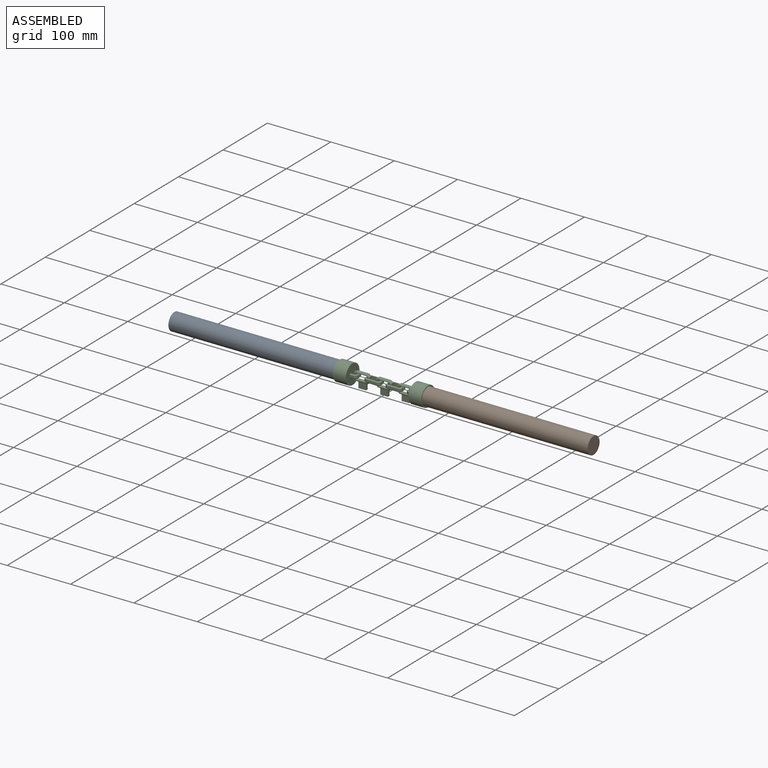
[diagram: assembled view]
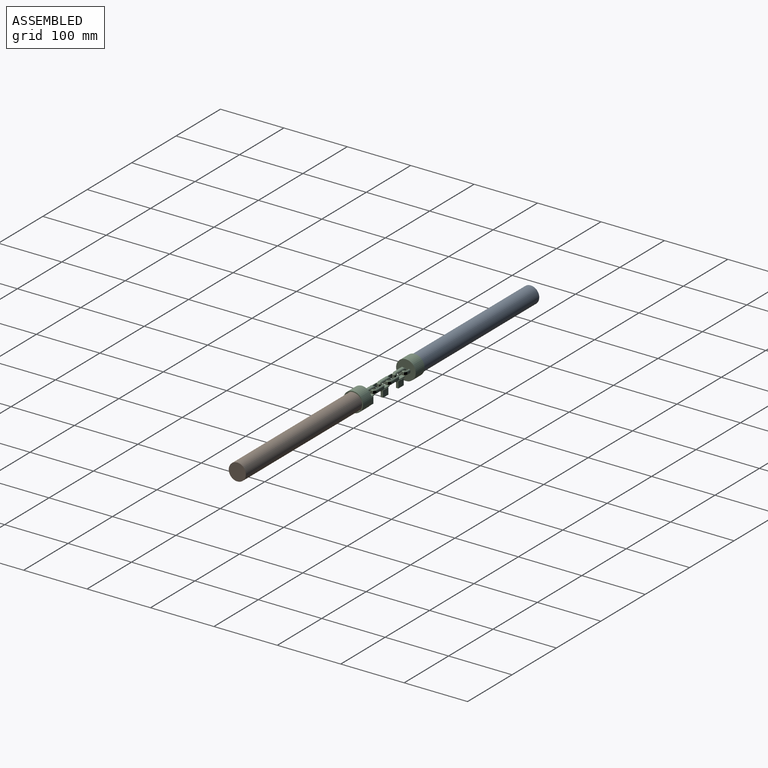
[diagram: assembled view, second angle]
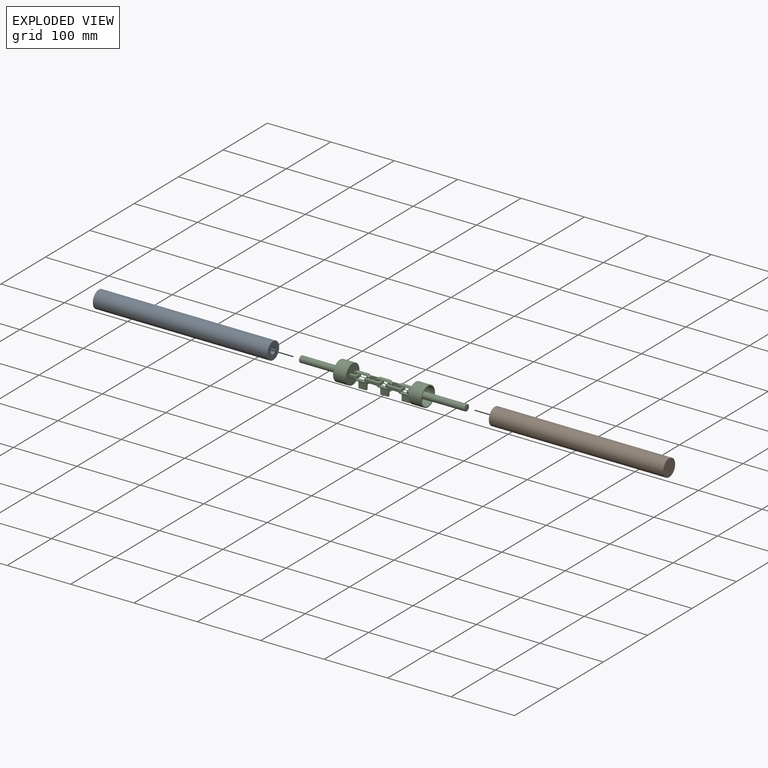
[diagram: exploded view]
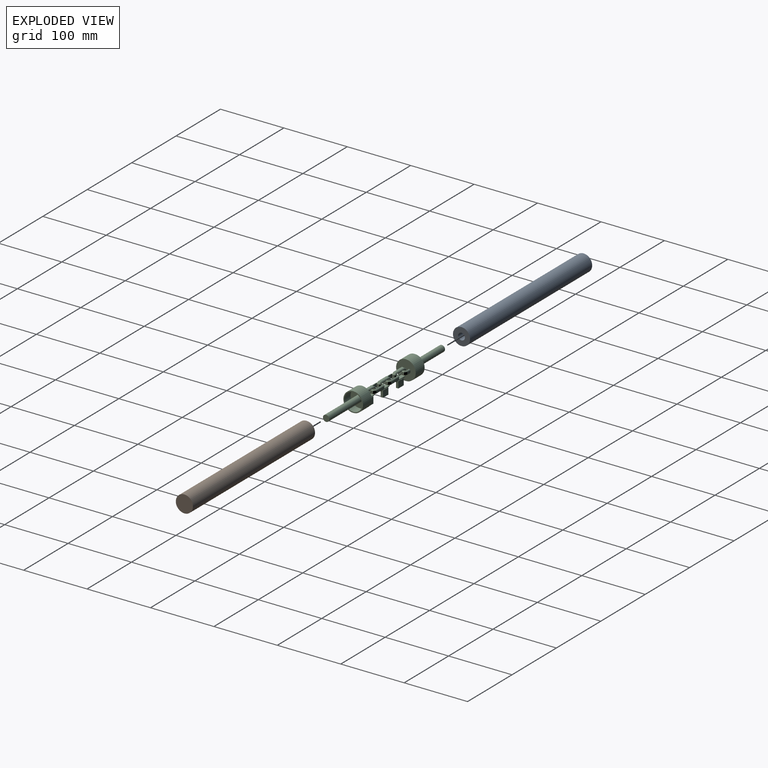
[diagram: exploded view, second angle]
ASSEMBLY  parts=3 mates=2
PART A: 5 faces, bbox 275x27x27 mm
  f0: cylinder r=13.5mm len=275mm, axis (-1,0,0), area 23326.3mm2, adj f1,f4
  f1: plane 27x27mm, normal (-1,0,0), area 480.9mm2, adj f0,f2
  f2: cylinder r=5.4mm len=76mm, axis (-1,0,0), area 2578.6mm2, adj f1,f3
  f3: plane 10.8x10.8mm, normal (-1,0,0), area 91.6mm2, adj f2
  f4: plane 27x27mm, normal (1,0,0), area 572.6mm2, adj f0
PART B: same geometry as A
PART C: 259 faces, bbox 260.9x31.2x32.7 mm
  f0: plane 6.84x3.9mm, normal (0,-1,0), area 26.7mm2, adj f3,f7,f15,f23
  f1: plane 6.84x3.9mm, normal (0,1,0), area 26.7mm2, adj f2,f6,f20,f23
  f2: plane 6.84x1.05mm, normal (0,0.71,-0.71), area 9.9mm2, adj f1,f8,f11,f23
  f3: plane 6.84x1.05mm, normal (0,-0.71,-0.71), area 9.9mm2, adj f0,f8,f10,f23
  f4: plane 6.13x6mm, normal (0,1,0), area 36.8mm2, adj f8,f9,f16,f23
  f5: plane 6.13x6mm, normal (0,-1,0), area 36.8mm2, adj f8,f9,f17,f23
  f6: plane 6.84x1.05mm, normal (0,0.71,0.71), area 9.9mm2, adj f1,f9,f12,f23
  f7: plane 6.84x1.05mm, normal (0,-0.71,0.71), area 9.9mm2, adj f0,f9,f13,f23
  f8: plane 11.79x9.36mm, normal (0,0,-1), area 28.1mm2, adj f2,f3,f4,f5,f10,f11,f14,f16
  f9: plane 11.79x9.36mm, normal (0,0,1), area 28.1mm2, adj f4,f5,f6,f7,f12,f13,f16,f17
  f10: plane 3.92x3.2mm, normal (0.42,-0.57,-0.71), area 6mm2, adj f3,f8,f14,f15
  f11: plane 3.92x3.2mm, normal (0.42,0.57,-0.71), area 6mm2, adj f2,f8,f14,f20
  f12: plane 3.92x3.2mm, normal (0.42,0.57,0.71), area 6mm2, adj f6,f9,f19,f20
  f13: plane 3.92x3.2mm, normal (0.42,-0.57,0.71), area 6mm2, adj f7,f9,f15,f19
  f14: plane 8.55x1.05mm, normal (0.71,0,-0.71), area 11.9mm2, adj f8,f10,f11,f21
  f15: plane 3.9x3.57mm, normal (0.6,-0.8,0), area 17.4mm2, adj f0,f10,f13,f21
  f16: plane 6x2.14mm, normal (-0.6,0.8,0), area 16.1mm2, adj f4,f8,f9,f18
  f17: plane 6x2.14mm, normal (-0.6,-0.8,0), area 16mm2, adj f5,f8,f9,f18
  f18: plane 6.42x6mm, normal (-1,0,0), area 37.7mm2, adj f8,f9,f16,f17,f216
  f19: plane 8.55x1.05mm, normal (0.71,0,0.71), area 11.9mm2, adj f9,f12,f13,f21
  f20: plane 3.9x3.57mm, normal (0.6,0.8,0), area 17.4mm2, adj f1,f11,f12,f21
  f21: plane 8.55x3.9mm, normal (1,0,0), area 32.6mm2, adj f14,f15,f19,f20,f28
  f22: cylinder r=15.5mm len=31mm, axis (-1,0,0), area 1947.8mm2, adj f23,f24
  f23: plane 31x31mm, normal (1,0,0), area 730.6mm2, adj f0,f1,f2,f3,f4,f5,f6,f7
  f24: plane 31x31mm, normal (-1,0,0), area 139mm2, adj f22,f26
  f25: plane 28x28mm, normal (-1,0,0), area 537.2mm2, adj f26,f27
  f26: cylinder r=14mm len=28mm, axis (-1,0,0), area 1231.5mm2, adj f24,f25
  f27: cylinder r=5mm len=75mm, axis (1,0,0), area 2356.2mm2, adj f25,f258
  f28: cylinder r=0.5mm len=11.22mm, axis (-1,0,0), area 35.2mm2, adj f21,f212
  f29: cylinder r=0.5mm len=3.33mm, axis (-1,0,0), area 10.4mm2, adj f23,f227
  f30: plane 6.84x3.9mm, normal (0,1,0), area 26.7mm2, adj f33,f37,f45,f53
  f31: plane 6.84x3.9mm, normal (0,-1,0), area 26.7mm2, adj f32,f36,f50,f53
  f32: plane 6.84x1.05mm, normal (0,-0.71,-0.71), area 9.9mm2, adj f31,f38,f41,f53
  f33: plane 6.84x1.05mm, normal (0,0.71,-0.71), area 9.9mm2, adj f30,f38,f40,f53
  f34: plane 6.13x6mm, normal (0,-1,0), area 36.8mm2, adj f38,f39,f46,f53
  f35: plane 6.13x6mm, normal (0,1,0), area 36.8mm2, adj f38,f39,f47,f53
  f36: plane 6.84x1.05mm, normal (0,-0.71,0.71), area 9.9mm2, adj f31,f39,f42,f53
  f37: plane 6.84x1.05mm, normal (0,0.71,0.71), area 9.9mm2, adj f30,f39,f43,f53
  f38: plane 11.79x9.36mm, normal (0,0,-1), area 28.1mm2, adj f32,f33,f34,f35,f40,f41,f44,f46
  f39: plane 11.79x9.36mm, normal (0,0,1), area 28.1mm2, adj f34,f35,f36,f37,f42,f43,f46,f47
  f40: plane 3.92x3.2mm, normal (-0.42,0.57,-0.71), area 6mm2, adj f33,f38,f44,f45
  f41: plane 3.92x3.2mm, normal (-0.42,-0.57,-0.71), area 6mm2, adj f32,f38,f44,f50
  f42: plane 3.92x3.2mm, normal (-0.42,-0.57,0.71), area 6mm2, adj f36,f39,f49,f50
  f43: plane 3.92x3.2mm, normal (-0.42,0.57,0.71), area 6mm2, adj f37,f39,f45,f49
  f44: plane 8.55x1.05mm, normal (-0.71,0,-0.71), area 11.9mm2, adj f38,f40,f41,f51
  f45: plane 3.9x3.57mm, normal (-0.6,0.8,0), area 17.4mm2, adj f30,f40,f43,f51
  f46: plane 6x2.14mm, normal (0.6,-0.8,0), area 16.1mm2, adj f34,f38,f39,f48
  f47: plane 6x2.14mm, normal (0.6,0.8,0), area 16mm2, adj f35,f38,f39,f48
  f48: plane 6.42x6mm, normal (1,0,0), area 37.7mm2, adj f38,f39,f46,f47,f105
  f49: plane 8.55x1.05mm, normal (-0.71,0,0.71), area 11.9mm2, adj f39,f42,f43,f51
  f50: plane 3.9x3.57mm, normal (-0.6,-0.8,0), area 17.4mm2, adj f31,f41,f42,f51
  f51: plane 8.55x3.9mm, normal (-1,0,0), area 32.6mm2, adj f44,f45,f49,f50,f58
  f52: cylinder r=15.5mm len=31mm, axis (1,0,0), area 1947.8mm2, adj f53,f54
  f53: plane 31x31mm, normal (-1,0,0), area 730.6mm2, adj f30,f31,f32,f33,f34,f35,f36,f37
  f54: plane 31x31mm, normal (1,0,0), area 139mm2, adj f52,f56
  f55: plane 28x28mm, normal (1,0,0), area 537.2mm2, adj f56,f57
  f56: cylinder r=14mm len=28mm, axis (1,0,0), area 1231.5mm2, adj f54,f55
  f57: cylinder r=5mm len=75mm, axis (-1,0,0), area 2356.2mm2, adj f55,f257
  f58: cylinder r=0.5mm len=8.31mm, axis (-1,0,0), area 26.1mm2, adj f51,f139
  f59: cylinder r=0.5mm len=2.21mm, axis (-1,0,0), area 7mm2, adj f53,f78
  f60: cylinder r=0.5mm len=2.56mm, axis (-1,0,0), area 8mm2, adj f209,f236
  f61: cylinder r=0.5mm len=4.65mm, axis (-1,0,0), area 14.6mm2, adj f156,f207
  f62: cylinder r=0.5mm len=3.61mm, axis (-1,0,0), area 11.3mm2, adj f133,f160
  f63: cylinder r=0.5mm len=4.35mm, axis (-1,0,0), area 13.7mm2, adj f80,f131
  f64: cylinder r=0.5mm len=8.62mm, axis (-1,0,0), area 27.1mm2, adj f75,f154
  f65: plane 12x0.61mm, normal (0,0,1), area 7.4mm2, adj f66,f68,f70,f71
  f66: plane 10.5x3.75mm, normal (-1,0,0), area 38.1mm2, adj f65,f67,f69,f70,f71,f72
  f67: plane 12x3.75mm, normal (0,0,-1), area 45mm2, adj f66,f68,f69,f70
  f68: plane 10.5x3.75mm, normal (1,0,0), area 38.1mm2, adj f65,f67,f69,f70,f71,f72
  f69: plane 12x10.06mm, normal (0,-1,0), area 120.8mm2, adj f66,f67,f68,f72
  f70: plane 12x10.5mm, normal (0,1,0), area 126mm2, adj f65,f66,f67,f68
  f71: plane 18x1.05mm, normal (0,0.71,-0.71), area 18.8mm2, adj f65,f66,f68,f72,f89,f90,f91
  f72: plane 18x3.9mm, normal (0,0,-1), area 37.8mm2, adj f66,f68,f69,f71,f76,f77,f99
  f73: plane 18x3.9mm, normal (0,0,1), area 70.2mm2, adj f74,f87,f96,f102
  f74: plane 3.9x3.57mm, normal (-0.6,0,0.8), area 17.4mm2, adj f73,f75,f94,f100
  f75: plane 8.55x3.9mm, normal (-1,0,0), area 32.6mm2, adj f64,f74,f76,f92,f98
  f76: plane 3.9x3.57mm, normal (-0.6,0,-0.8), area 17.4mm2, adj f72,f75,f90,f97
  f77: plane 3.9x3.56mm, normal (0.6,0,-0.8), area 17.4mm2, adj f72,f78,f91,f101
  f78: plane 8.55x3.9mm, normal (1,0,0), area 32.6mm2, adj f59,f77,f87,f93,f103
  f79: plane 6x2.14mm, normal (0.6,0,0.8), area 16.1mm2, adj f80,f86,f88,f89
  f80: plane 6.42x6mm, normal (1,0,0), area 37.7mm2, adj f63,f79,f81,f88,f89
  f81: plane 6x2.14mm, normal (0.6,0,-0.8), area 16mm2, adj f80,f82,f88,f89
  f82: plane 16.58x6mm, normal (0,0,-1), area 99.5mm2, adj f81,f83,f88,f89
  f83: plane 6x2.14mm, normal (-0.6,0,-0.8), area 16mm2, adj f82,f84,f88,f89
  f84: plane 6.42x6mm, normal (-1,0,0), area 37.7mm2, adj f83,f85,f88,f89,f105
  f85: plane 6x2.14mm, normal (-0.6,0,0.8), area 16mm2, adj f84,f86,f88,f89
  f86: plane 16.57x6mm, normal (0,0,1), area 99.4mm2, adj f79,f85,f88,f89
  f87: plane 3.9x3.56mm, normal (0.6,0,0.8), area 17.4mm2, adj f73,f78,f95,f104
  f88: plane 23.03x11.79mm, normal (0,-1,0), area 65.5mm2, adj f79,f80,f81,f82,f83,f84,f85,f86
  f89: plane 23.03x11.79mm, normal (0,1,0), area 65.5mm2, adj f71,f79,f80,f81,f82,f83,f84,f85
  f90: plane 3.92x3.2mm, normal (-0.42,0.71,-0.57), area 6mm2, adj f71,f76,f89,f92
  f91: plane 3.91x3.2mm, normal (0.42,0.71,-0.57), area 6mm2, adj f71,f77,f89,f93
  f92: plane 8.55x1.05mm, normal (-0.71,0.71,0), area 11.9mm2, adj f75,f89,f90,f94
  f93: plane 8.55x1.05mm, normal (0.71,0.71,0), area 11.9mm2, adj f78,f89,f91,f95
  f94: plane 3.92x3.2mm, normal (-0.42,0.71,0.57), area 6mm2, adj f74,f89,f92,f96
  f95: plane 3.91x3.2mm, normal (0.42,0.71,0.57), area 6mm2, adj f87,f89,f93,f96
  f96: plane 18x1.05mm, normal (0,0.71,0.71), area 26.2mm2, adj f73,f89,f94,f95
  f97: plane 3.92x3.2mm, normal (-0.42,-0.71,-0.57), area 6mm2, adj f76,f88,f98,f99
  f98: plane 8.55x1.05mm, normal (-0.71,-0.71,0), area 11.9mm2, adj f75,f88,f97,f100
  f99: plane 18x1.05mm, normal (0,-0.71,-0.71), area 26.2mm2, adj f72,f88,f97,f101
  f100: plane 3.92x3.2mm, normal (-0.42,-0.71,0.57), area 6mm2, adj f74,f88,f98,f102
  f101: plane 3.91x3.2mm, normal (0.42,-0.71,-0.57), area 6mm2, adj f77,f88,f99,f103
  f102: plane 18x1.05mm, normal (0,-0.71,0.71), area 26.2mm2, adj f73,f88,f100,f104
  f103: plane 8.55x1.05mm, normal (0.71,-0.71,0), area 11.9mm2, adj f78,f88,f101,f104
  f104: plane 3.91x3.2mm, normal (0.42,-0.71,0.57), area 6mm2, adj f87,f88,f102,f103
  f105: cylinder r=0.5mm len=3.92mm, axis (-1,0,0), area 12.3mm2, adj f48,f84
  f106: plane 18x3.9mm, normal (0,1,0), area 70.2mm2, adj f109,f117,f125,f138
  f107: plane 18x3.9mm, normal (0,-1,0), area 70.2mm2, adj f112,f120,f123,f135
  f108: plane 3.91x3.19mm, normal (0.42,0.57,-0.71), area 6mm2, adj f109,f122,f129,f138
  f109: plane 18x1.05mm, normal (0,0.71,-0.71), area 26.2mm2, adj f106,f108,f110,f129
  f110: plane 3.92x3.2mm, normal (-0.42,0.57,-0.71), area 6mm2, adj f109,f124,f125,f129
  f111: plane 3.92x3.2mm, normal (-0.42,-0.57,-0.71), area 6mm2, adj f112,f124,f129,f135
  f112: plane 18x1.05mm, normal (0,-0.71,-0.71), area 26.2mm2, adj f107,f111,f113,f129
  f113: plane 3.91x3.2mm, normal (0.42,-0.57,-0.71), area 6mm2, adj f112,f122,f123,f129
  f114: plane 16.58x6mm, normal (0,1,0), area 99.5mm2, adj f126,f129,f130,f132
  f115: plane 16.57x6mm, normal (0,-1,0), area 99.4mm2, adj f127,f128,f129,f132
  f116: plane 3.92x3.2mm, normal (-0.42,0.57,0.71), area 6mm2, adj f117,f125,f132,f134
  f117: plane 18x1.05mm, normal (0,0.71,0.71), area 26.2mm2, adj f106,f116,f118,f132
  f118: plane 3.91x3.19mm, normal (0.42,0.57,0.71), area 6mm2, adj f117,f132,f137,f138
  f119: plane 3.91x3.2mm, normal (0.42,-0.57,0.71), area 6mm2, adj f120,f123,f132,f137
  f120: plane 18x1.05mm, normal (0,-0.71,0.71), area 26.2mm2, adj f107,f119,f121,f132
  f121: plane 3.92x3.2mm, normal (-0.42,-0.57,0.71), area 6mm2, adj f120,f132,f134,f135
  f122: plane 8.55x1.05mm, normal (0.71,0,-0.71), area 11.9mm2, adj f108,f113,f129,f139
  f123: plane 3.9x3.56mm, normal (0.6,-0.8,0), area 17.4mm2, adj f107,f113,f119,f139
  f124: plane 8.55x1.05mm, normal (-0.71,0,-0.71), area 11.9mm2, adj f110,f111,f129,f136
  f125: plane 3.9x3.57mm, normal (-0.6,0.8,0), area 17.4mm2, adj f106,f110,f116,f136
  f126: plane 6x2.14mm, normal (-0.6,0.8,0), area 16mm2, adj f114,f129,f131,f132
  f127: plane 6x2.14mm, normal (-0.6,-0.8,0), area 16mm2, adj f115,f129,f131,f132
  f128: plane 6x2.14mm, normal (0.6,-0.8,0), area 16.1mm2, adj f115,f129,f132,f133
  f129: plane 23.03x11.8mm, normal (0,0,-1), area 65.5mm2, adj f108,f109,f110,f111,f112,f113,f114,f115
  f130: plane 6x2.14mm, normal (0.6,0.8,0), area 16mm2, adj f114,f129,f132,f133
  f131: plane 6.42x6mm, normal (-1,0,0), area 37.7mm2, adj f63,f126,f127,f129,f132
  f132: plane 23.03x11.8mm, normal (0,0,1), area 65.5mm2, adj f114,f115,f116,f117,f118,f119,f120,f121
  f133: plane 6.42x6mm, normal (1,0,0), area 37.7mm2, adj f62,f128,f129,f130,f132
  f134: plane 8.55x1.05mm, normal (-0.71,0,0.71), area 11.9mm2, adj f116,f121,f132,f136
  f135: plane 3.9x3.57mm, normal (-0.6,-0.8,0), area 17.4mm2, adj f107,f111,f121,f136
  f136: plane 8.55x3.9mm, normal (-1,0,0), area 32.6mm2, adj f124,f125,f134,f135,f140
  f137: plane 8.55x1.05mm, normal (0.71,0,0.71), area 11.9mm2, adj f118,f119,f132,f139
  f138: plane 3.9x3.56mm, normal (0.6,0.8,0), area 17.4mm2, adj f106,f108,f118,f139
  f139: plane 8.55x3.9mm, normal (1,0,0), area 32.6mm2, adj f58,f122,f123,f137,f138
  f140: cylinder r=0.5mm len=8.32mm, axis (-1,0,0), area 26.1mm2, adj f136,f215
  f141: plane 12x0.61mm, normal (0,0,1), area 7.4mm2, adj f142,f144,f146,f147
  f142: plane 10.5x3.75mm, normal (-1,0,0), area 38.1mm2, adj f141,f143,f145,f146,f147,f148
  f143: plane 12x3.75mm, normal (0,0,-1), area 45mm2, adj f142,f144,f145,f146
  f144: plane 10.5x3.75mm, normal (1,0,0), area 38.1mm2, adj f141,f143,f145,f146,f147,f148
  f145: plane 12x10.06mm, normal (0,-1,0), area 120.8mm2, adj f142,f143,f144,f148
  f146: plane 12x10.5mm, normal (0,1,0), area 126mm2, adj f141,f142,f143,f144
  f147: plane 18x1.05mm, normal (0,0.71,-0.71), area 18.8mm2, adj f141,f142,f144,f148,f165,f166,f167
  f148: plane 18x3.9mm, normal (0,0,-1), area 37.8mm2, adj f142,f144,f145,f147,f152,f153,f175
  f149: plane 18x3.9mm, normal (0,0,1), area 70.2mm2, adj f150,f163,f172,f178
  f150: plane 3.9x3.57mm, normal (-0.6,0,0.8), area 17.4mm2, adj f149,f151,f170,f176
  f151: plane 8.55x3.9mm, normal (-1,0,0), area 32.6mm2, adj f150,f152,f168,f174,f181
  f152: plane 3.9x3.57mm, normal (-0.6,0,-0.8), area 17.4mm2, adj f148,f151,f166,f173
  f153: plane 3.9x3.56mm, normal (0.6,0,-0.8), area 17.4mm2, adj f148,f154,f167,f177
  f154: plane 8.55x3.9mm, normal (1,0,0), area 32.6mm2, adj f64,f153,f163,f169,f179
  f155: plane 6x2.14mm, normal (0.6,0,0.8), area 16.1mm2, adj f156,f162,f164,f165
  f156: plane 6.42x6mm, normal (1,0,0), area 37.7mm2, adj f61,f155,f157,f164,f165
  f157: plane 6x2.14mm, normal (0.6,0,-0.8), area 16mm2, adj f156,f158,f164,f165
  f158: plane 16.58x6mm, normal (0,0,-1), area 99.5mm2, adj f157,f159,f164,f165
  f159: plane 6x2.14mm, normal (-0.6,0,-0.8), area 16mm2, adj f158,f160,f164,f165
  f160: plane 6.42x6mm, normal (-1,0,0), area 37.7mm2, adj f62,f159,f161,f164,f165
  f161: plane 6x2.14mm, normal (-0.6,0,0.8), area 16mm2, adj f160,f162,f164,f165
  f162: plane 16.57x6mm, normal (0,0,1), area 99.4mm2, adj f155,f161,f164,f165
  f163: plane 3.9x3.56mm, normal (0.6,0,0.8), area 17.4mm2, adj f149,f154,f171,f180
  f164: plane 23.03x11.79mm, normal (0,-1,0), area 65.5mm2, adj f155,f156,f157,f158,f159,f160,f161,f162
  f165: plane 23.03x11.79mm, normal (0,1,0), area 65.5mm2, adj f147,f155,f156,f157,f158,f159,f160,f161
  f166: plane 3.92x3.2mm, normal (-0.42,0.71,-0.57), area 6mm2, adj f147,f152,f165,f168
  f167: plane 3.91x3.2mm, normal (0.42,0.71,-0.57), area 6mm2, adj f147,f153,f165,f169
  f168: plane 8.55x1.05mm, normal (-0.71,0.71,0), area 11.9mm2, adj f151,f165,f166,f170
  f169: plane 8.55x1.05mm, normal (0.71,0.71,0), area 11.9mm2, adj f154,f165,f167,f171
  f170: plane 3.92x3.2mm, normal (-0.42,0.71,0.57), area 6mm2, adj f150,f165,f168,f172
  f171: plane 3.91x3.2mm, normal (0.42,0.71,0.57), area 6mm2, adj f163,f165,f169,f172
  f172: plane 18x1.05mm, normal (0,0.71,0.71), area 26.2mm2, adj f149,f165,f170,f171
  f173: plane 3.92x3.2mm, normal (-0.42,-0.71,-0.57), area 6mm2, adj f152,f164,f174,f175
  f174: plane 8.55x1.05mm, normal (-0.71,-0.71,0), area 11.9mm2, adj f151,f164,f173,f176
  f175: plane 18x1.05mm, normal (0,-0.71,-0.71), area 26.2mm2, adj f148,f164,f173,f177
  f176: plane 3.92x3.2mm, normal (-0.42,-0.71,0.57), area 6mm2, adj f150,f164,f174,f178
  f177: plane 3.91x3.2mm, normal (0.42,-0.71,-0.57), area 6mm2, adj f153,f164,f175,f179
  f178: plane 18x1.05mm, normal (0,-0.71,0.71), area 26.2mm2, adj f149,f164,f176,f180
  f179: plane 8.55x1.05mm, normal (0.71,-0.71,0), area 11.9mm2, adj f154,f164,f177,f180
  f180: plane 3.91x3.2mm, normal (0.42,-0.71,0.57), area 6mm2, adj f163,f164,f178,f179
  f181: cylinder r=0.5mm len=9.37mm, axis (-1,0,0), area 29.4mm2, adj f151,f230
  f182: plane 18x3.9mm, normal (0,1,0), area 70.2mm2, adj f185,f193,f201,f214
  f183: plane 18x3.9mm, normal (0,-1,0), area 70.2mm2, adj f188,f196,f199,f211
  f184: plane 3.91x3.19mm, normal (0.42,0.57,-0.71), area 6mm2, adj f185,f198,f205,f214
  f185: plane 18x1.05mm, normal (0,0.71,-0.71), area 26.2mm2, adj f182,f184,f186,f205
  f186: plane 3.92x3.2mm, normal (-0.42,0.57,-0.71), area 6mm2, adj f185,f200,f201,f205
  f187: plane 3.92x3.2mm, normal (-0.42,-0.57,-0.71), area 6mm2, adj f188,f200,f205,f211
  f188: plane 18x1.05mm, normal (0,-0.71,-0.71), area 26.2mm2, adj f183,f187,f189,f205
  f189: plane 3.91x3.2mm, normal (0.42,-0.57,-0.71), area 6mm2, adj f188,f198,f199,f205
  f190: plane 16.58x6mm, normal (0,1,0), area 99.5mm2, adj f202,f205,f206,f208
  f191: plane 16.57x6mm, normal (0,-1,0), area 99.4mm2, adj f203,f204,f205,f208
  f192: plane 3.92x3.2mm, normal (-0.42,0.57,0.71), area 6mm2, adj f193,f201,f208,f210
  f193: plane 18x1.05mm, normal (0,0.71,0.71), area 26.2mm2, adj f182,f192,f194,f208
  f194: plane 3.91x3.19mm, normal (0.42,0.57,0.71), area 6mm2, adj f193,f208,f213,f214
  f195: plane 3.91x3.2mm, normal (0.42,-0.57,0.71), area 6mm2, adj f196,f199,f208,f213
  f196: plane 18x1.05mm, normal (0,-0.71,0.71), area 26.2mm2, adj f183,f195,f197,f208
  f197: plane 3.92x3.2mm, normal (-0.42,-0.57,0.71), area 6mm2, adj f196,f208,f210,f211
  f198: plane 8.55x1.05mm, normal (0.71,0,-0.71), area 11.9mm2, adj f184,f189,f205,f215
  f199: plane 3.9x3.56mm, normal (0.6,-0.8,0), area 17.4mm2, adj f183,f189,f195,f215
  f200: plane 8.55x1.05mm, normal (-0.71,0,-0.71), area 11.9mm2, adj f186,f187,f205,f212
  f201: plane 3.9x3.57mm, normal (-0.6,0.8,0), area 17.4mm2, adj f182,f186,f192,f212
  f202: plane 6x2.14mm, normal (-0.6,0.8,0), area 16mm2, adj f190,f205,f207,f208
  f203: plane 6x2.14mm, normal (-0.6,-0.8,0), area 16mm2, adj f191,f205,f207,f208
  f204: plane 6x2.14mm, normal (0.6,-0.8,0), area 16.1mm2, adj f191,f205,f208,f209
  f205: plane 23.03x11.8mm, normal (0,0,-1), area 65.5mm2, adj f184,f185,f186,f187,f188,f189,f190,f191
  f206: plane 6x2.14mm, normal (0.6,0.8,0), area 16mm2, adj f190,f205,f208,f209
  f207: plane 6.42x6mm, normal (-1,0,0), area 37.7mm2, adj f61,f202,f203,f205,f208
  f208: plane 23.03x11.8mm, normal (0,0,1), area 65.5mm2, adj f190,f191,f192,f193,f194,f195,f196,f197
  f209: plane 6.42x6mm, normal (1,0,0), area 37.7mm2, adj f60,f204,f205,f206,f208
  f210: plane 8.55x1.05mm, normal (-0.71,0,0.71), area 11.9mm2, adj f192,f197,f208,f212
  f211: plane 3.9x3.57mm, normal (-0.6,-0.8,0), area 17.4mm2, adj f183,f187,f197,f212
  f212: plane 8.55x3.9mm, normal (-1,0,0), area 32.6mm2, adj f28,f200,f201,f210,f211
  f213: plane 8.55x1.05mm, normal (0.71,0,0.71), area 11.9mm2, adj f194,f195,f208,f215
  f214: plane 3.9x3.56mm, normal (0.6,0.8,0), area 17.4mm2, adj f182,f184,f194,f215
  f215: plane 8.55x3.9mm, normal (1,0,0), area 32.6mm2, adj f140,f198,f199,f213,f214
  f216: cylinder r=0.5mm len=2.81mm, axis (-1,0,0), area 8.8mm2, adj f18,f232
  f217: plane 12x0.61mm, normal (0,0,1), area 7.4mm2, adj f218,f220,f222,f223
  f218: plane 10.5x3.75mm, normal (-1,0,0), area 38.1mm2, adj f217,f219,f221,f222,f223,f224
  f219: plane 12x3.75mm, normal (0,0,-1), area 45mm2, adj f218,f220,f221,f222
  f220: plane 10.5x3.75mm, normal (1,0,0), area 38.1mm2, adj f217,f219,f221,f222,f223,f224
  f221: plane 12x10.06mm, normal (0,-1,0), area 120.8mm2, adj f218,f219,f220,f224
  f222: plane 12x10.5mm, normal (0,1,0), area 126mm2, adj f217,f218,f219,f220
  f223: plane 18x1.05mm, normal (0,0.71,-0.71), area 18.8mm2, adj f217,f218,f220,f224,f241,f242,f243
  f224: plane 18x3.9mm, normal (0,0,-1), area 37.8mm2, adj f218,f220,f221,f223,f228,f229,f251
  f225: plane 18x3.9mm, normal (0,0,1), area 70.2mm2, adj f226,f239,f248,f254
  f226: plane 3.9x3.57mm, normal (-0.6,0,0.8), area 17.4mm2, adj f225,f227,f246,f252
  f227: plane 8.55x3.9mm, normal (-1,0,0), area 32.6mm2, adj f29,f226,f228,f244,f250
  f228: plane 3.9x3.57mm, normal (-0.6,0,-0.8), area 17.4mm2, adj f224,f227,f242,f249
  f229: plane 3.9x3.56mm, normal (0.6,0,-0.8), area 17.4mm2, adj f224,f230,f243,f253
  f230: plane 8.55x3.9mm, normal (1,0,0), area 32.6mm2, adj f181,f229,f239,f245,f255
  f231: plane 6x2.14mm, normal (0.6,0,0.8), area 16.1mm2, adj f232,f238,f240,f241
  f232: plane 6.42x6mm, normal (1,0,0), area 37.7mm2, adj f216,f231,f233,f240,f241
  f233: plane 6x2.14mm, normal (0.6,0,-0.8), area 16mm2, adj f232,f234,f240,f241
  f234: plane 16.58x6mm, normal (0,0,-1), area 99.5mm2, adj f233,f235,f240,f241
  f235: plane 6x2.14mm, normal (-0.6,0,-0.8), area 16mm2, adj f234,f236,f240,f241
  f236: plane 6.42x6mm, normal (-1,0,0), area 37.7mm2, adj f60,f235,f237,f240,f241
  f237: plane 6x2.14mm, normal (-0.6,0,0.8), area 16mm2, adj f236,f238,f240,f241
  f238: plane 16.57x6mm, normal (0,0,1), area 99.4mm2, adj f231,f237,f240,f241
  f239: plane 3.9x3.56mm, normal (0.6,0,0.8), area 17.4mm2, adj f225,f230,f247,f256
  f240: plane 23.03x11.79mm, normal (0,-1,0), area 65.5mm2, adj f231,f232,f233,f234,f235,f236,f237,f238
  f241: plane 23.03x11.79mm, normal (0,1,0), area 65.5mm2, adj f223,f231,f232,f233,f234,f235,f236,f237
  f242: plane 3.92x3.2mm, normal (-0.42,0.71,-0.57), area 6mm2, adj f223,f228,f241,f244
  f243: plane 3.91x3.2mm, normal (0.42,0.71,-0.57), area 6mm2, adj f223,f229,f241,f245
  f244: plane 8.55x1.05mm, normal (-0.71,0.71,0), area 11.9mm2, adj f227,f241,f242,f246
  f245: plane 8.55x1.05mm, normal (0.71,0.71,0), area 11.9mm2, adj f230,f241,f243,f247
  f246: plane 3.92x3.2mm, normal (-0.42,0.71,0.57), area 6mm2, adj f226,f241,f244,f248
  f247: plane 3.91x3.2mm, normal (0.42,0.71,0.57), area 6mm2, adj f239,f241,f245,f248
  f248: plane 18x1.05mm, normal (0,0.71,0.71), area 26.2mm2, adj f225,f241,f246,f247
  f249: plane 3.92x3.2mm, normal (-0.42,-0.71,-0.57), area 6mm2, adj f228,f240,f250,f251
  f250: plane 8.55x1.05mm, normal (-0.71,-0.71,0), area 11.9mm2, adj f227,f240,f249,f252
  f251: plane 18x1.05mm, normal (0,-0.71,-0.71), area 26.2mm2, adj f224,f240,f249,f253
  f252: plane 3.92x3.2mm, normal (-0.42,-0.71,0.57), area 6mm2, adj f226,f240,f250,f254
  f253: plane 3.91x3.2mm, normal (0.42,-0.71,-0.57), area 6mm2, adj f229,f240,f251,f255
  f254: plane 18x1.05mm, normal (0,-0.71,0.71), area 26.2mm2, adj f225,f240,f252,f256
  f255: plane 8.55x1.05mm, normal (0.71,-0.71,0), area 11.9mm2, adj f230,f240,f253,f256
  f256: plane 3.91x3.2mm, normal (0.42,-0.71,0.57), area 6mm2, adj f239,f240,f254,f255
  f257: plane 10x10mm, normal (1,0,0), area 78.5mm2, adj f57
  f258: plane 10x10mm, normal (-1,0,0), area 78.5mm2, adj f27
PLACE A rot(axis=(0,0,-1),180deg) t=(-42.4,-2.88,-94.8)mm
PLACE B t=(68.51,-22.61,-94.8)mm
PLACE C t=(-52.07,-13.95,-43.43)mm
MATE fastened B.f0 <-> C.f57  axis (-1,0,0) through (68.51,-12.67,-30.93)mm
MATE fastened A.f0 <-> C.f22  axis (1,0,0) through (-42.4,-12.82,-30.93)mm
